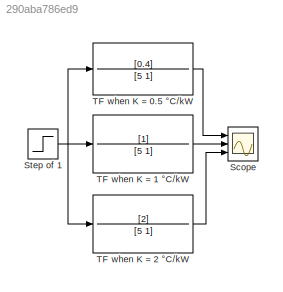
MODEL slx_290aba786ed9
KIND model
CONFIG AbsTol = auto
CONFIG EnableMultiTasking = off
CONFIG FixedStep = auto
CONFIG MaxStep = auto
CONFIG MinStep = auto
CONFIG RelTol = 1e-3
CONFIG SampleTimeConstraint = Unconstrained
CONFIG SolverName = VariableStepAuto
CONFIG StartTime = 0.0
CONFIG StopTime = 100
BLOCK [Scope] Scope
  Floating = off
  NumInputPorts = 3
  Ports = [3]
  ScopeSpecificationString = Simulink.scopes.TimeScopeBlockCfg('CurrentConfiguration', extmgr.ConfigurationSet(extmgr.Configuration('Core','General UI',true),extmgr.Configuration('Core','Source UI',true),extmgr.Configuration('Sources','WiredSimulink',true),extmgr.Configuration('Visuals','Time Domain',true,'SerializedDisplays',{struct('MinYLimReal','-0.25','MaxYLimReal','2.25','YLabelReal','','MinYLimMag','0.00000','MaxYLimMag...<+1410ch>
BLOCK [Step] Step of 1
  SampleTime = 0
BLOCK [TransferFcn] TF when K = 0.5 °C//kW
  Denominator = [5 1]
  Numerator = [0.4]
BLOCK [TransferFcn] TF when K = 1 °C//kW
  Denominator = [5 1]
BLOCK [TransferFcn] TF when K = 2 °C//kW
  Denominator = [5 1]
  Numerator = [2]
NET Step of 1:1 -> TF when K = 0.5 °C//kW:1, TF when K = 1 °C//kW:1, TF when K = 2 °C//kW:1
LINE TF when K = 0.5 °C//kW:1 -> Scope:1
LINE TF when K = 1 °C//kW:1 -> Scope:2
LINE TF when K = 2 °C//kW:1 -> Scope:3
note: NET lines group one-source signal fan-out (src -> all destinations, sorted); 1:1 wires keep LINE
